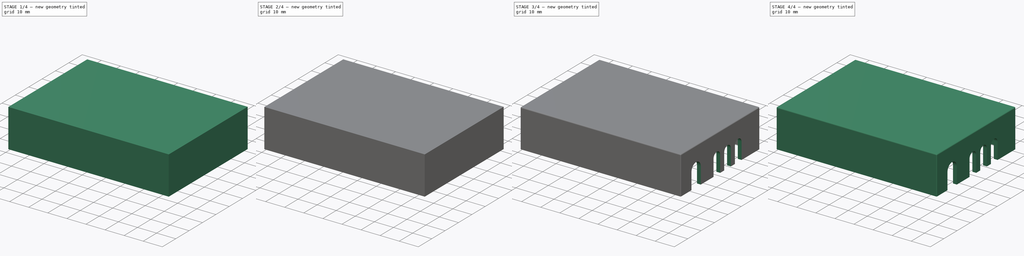
[diagram: build sequence overview — one tinted view per stage of 4, left to right]
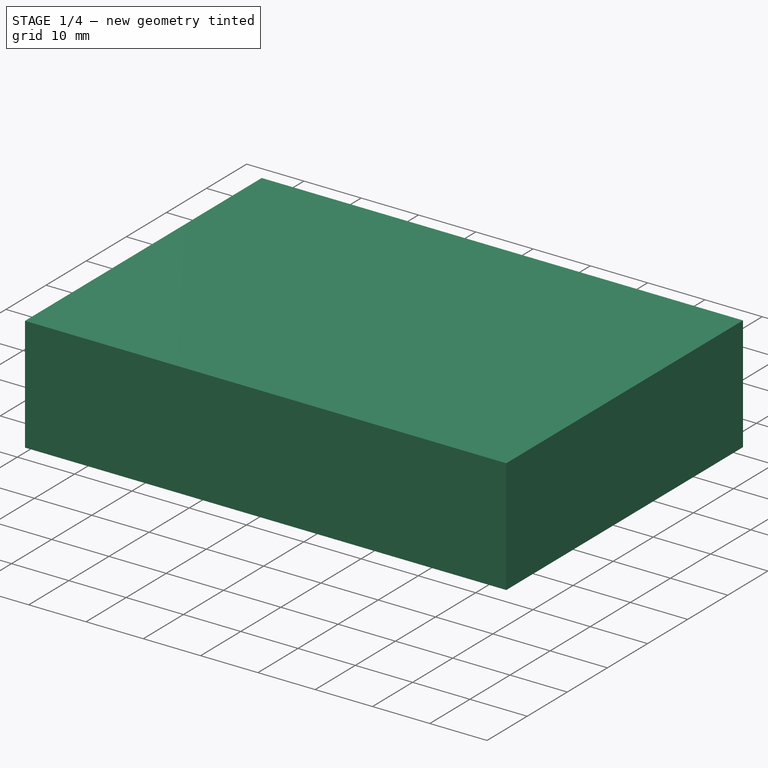
[diagram: stage 1 of 4 — iso view after this stage's code; geometry added in this stage tinted green]
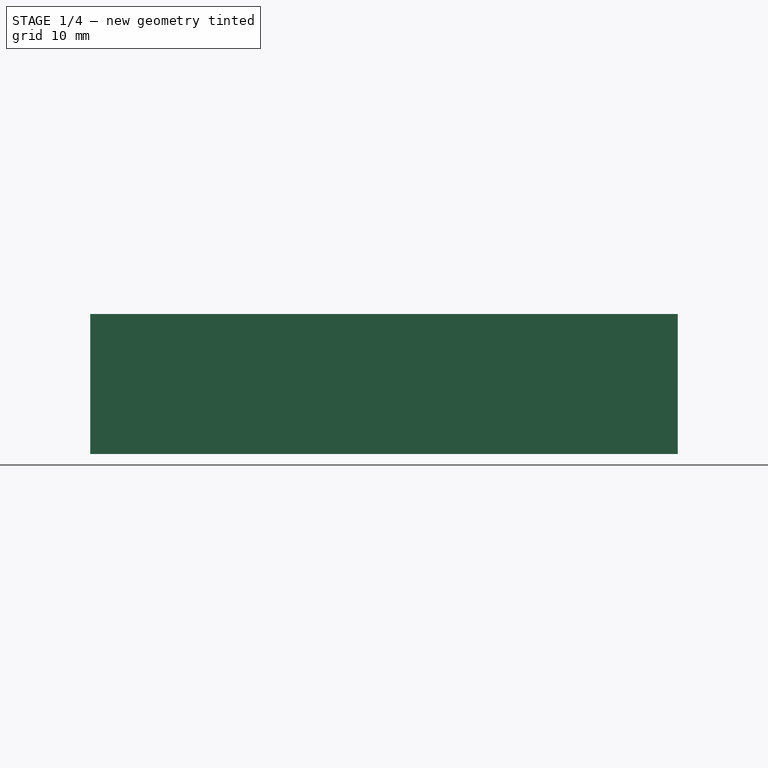
[diagram: stage 1 of 4 — front view after this stage's code; geometry added in this stage tinted green]
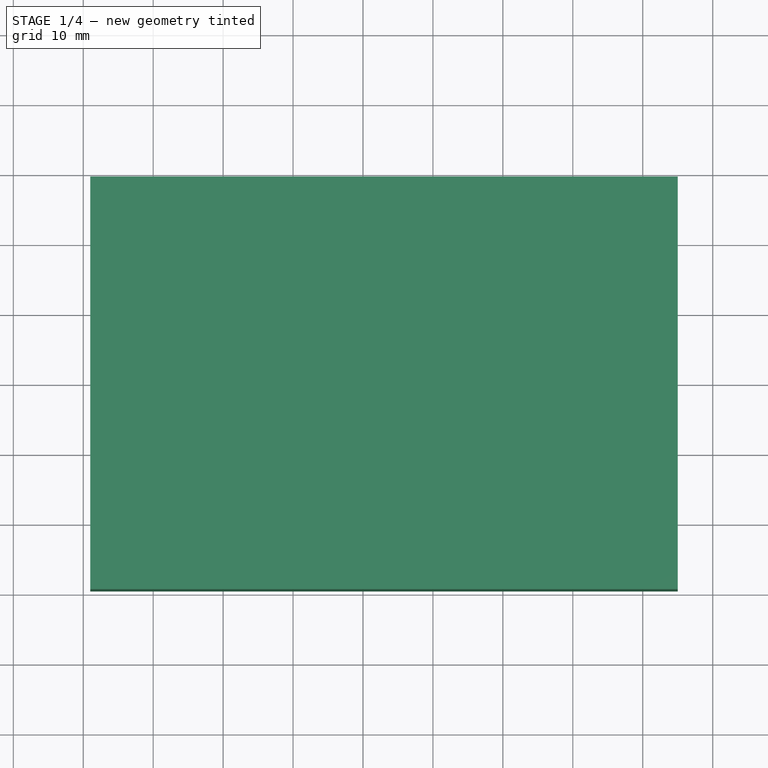
[diagram: stage 1 of 4 — top view after this stage's code; geometry added in this stage tinted green]
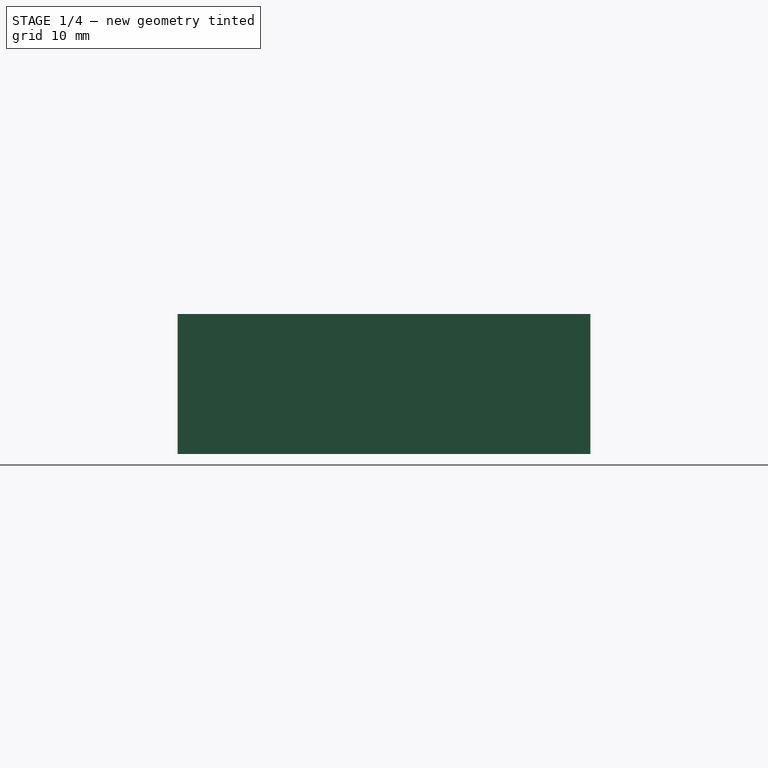
[diagram: stage 1 of 4 — right view after this stage's code; geometry added in this stage tinted green]
FCSTD DOCUMENT  (FreeCAD 0.19R24276 (Git))
Label: PCB_case_top
License: All rights reserved
LicenseURL: http://en.wikipedia.org/wiki/All_rights_reserved
objects: Sketcher::SketchObject×5, PartDesign::Fillet×4, PartDesign::Pad×3, PartDesign::Pocket×2, PartDesign::Body×1
note: 24 computed .brp shape members not serialized (recipe doc carries the construction recipe); baked Part::Feature solids carry a one-line shape summary decoded from their .brp

FEATURE [Sketcher::SketchObject] Sketch
  FullyConstrained = true
  MapMode = 5
  Support = -> [XY_Plane]
  sketch-geometry (4):
    g0: LineSegment StartX=-39 StartY=29.5 StartZ=0 EndX=45 EndY=29.5 EndZ=0
    g1: LineSegment StartX=45 StartY=29.5 StartZ=0 EndX=45 EndY=-29.5 EndZ=0
    g2: LineSegment StartX=45 StartY=-29.5 StartZ=0 EndX=-39 EndY=-29.5 EndZ=0
    g3: LineSegment StartX=-39 StartY=-29.5 StartZ=0 EndX=-39 EndY=29.5 EndZ=0
  constraints (11):
    c: Coincident(g0,g1)
    c: Coincident(g1,g2)
    c: Coincident(g2,g3)
    c: Coincident(g3,g0)
    c: Horizontal(g0)
    c: Horizontal(g2)
    c: Vertical(g1)
    c: DistanceX(g0,g0) = 84
    c: DistanceY(g3,g3) = 59
    c: Symmetric(g0,g2,g-1)
    c: DistanceX(g0,g-1) = 39
FEATURE [PartDesign::Pad] Pad
  Direction = (1,1,1)
  Length = 20
  Length2 = 100
  Profile = -> Sketch
  Type = 0
FEATURE [Sketcher::SketchObject] Sketch002
  FullyConstrained = true
  MapMode = 5
  Placement = pos=(0,0,0) rot=(1,0,0;3.14159rad)
  Support = -> [Pad]
  sketch-geometry (4):
    g0: LineSegment StartX=-37 StartY=27.5 StartZ=0 EndX=43 EndY=27.5 EndZ=0
    g1: LineSegment StartX=43 StartY=27.5 StartZ=0 EndX=43 EndY=-27.5 EndZ=0
    g2: LineSegment StartX=43 StartY=-27.5 StartZ=0 EndX=-37 EndY=-27.5 EndZ=0
    g3: LineSegment StartX=-37 StartY=-27.5 StartZ=0 EndX=-37 EndY=27.5 EndZ=0
  constraints (11):
    c: Coincident(g0,g1)
    c: Coincident(g1,g2)
    c: Coincident(g2,g3)
    c: Coincident(g3,g0)
    c: Horizontal(g0)
    c: Horizontal(g2)
    c: Vertical(g1)
    c: DistanceX(g0,g0) = 80
    c: DistanceY(g3,g3) = 55
    c: Symmetric(g0,g2,g-1)
    c: DistanceX(g0,g-1) = 37
FEATURE [PartDesign::Pocket] Pocket
  BaseFeature = -> Pad
  Length = 18
  Length2 = 100
  Profile = -> Sketch002
  Type = 0
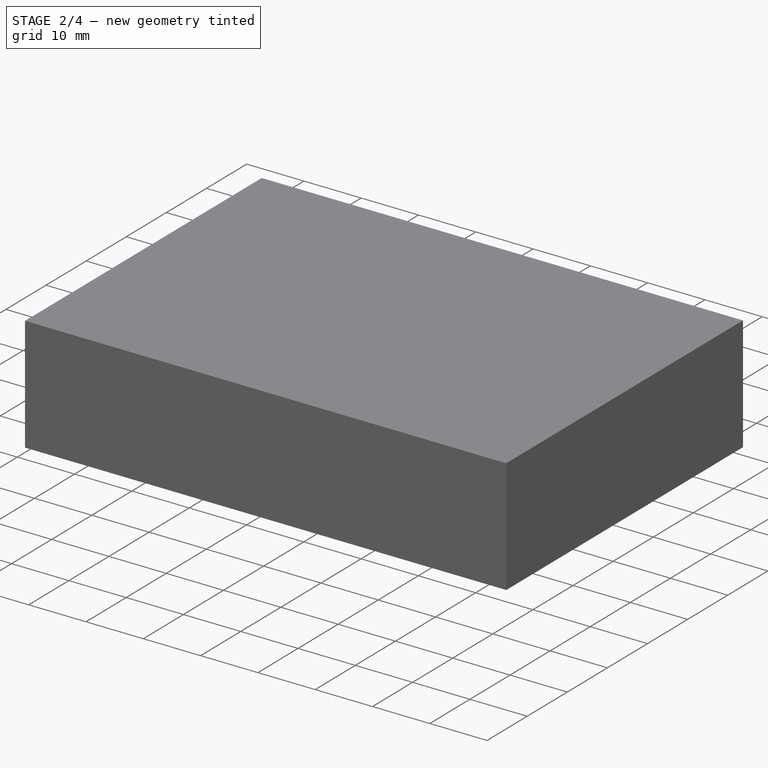
[diagram: stage 2 of 4 — iso view after this stage's code; geometry added in this stage tinted green]
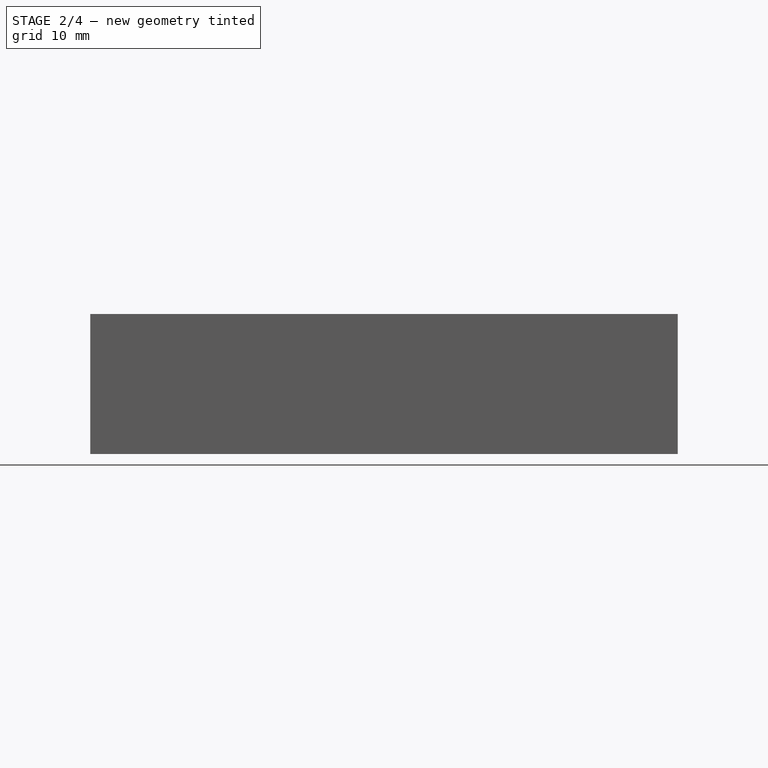
[diagram: stage 2 of 4 — front view after this stage's code; geometry added in this stage tinted green]
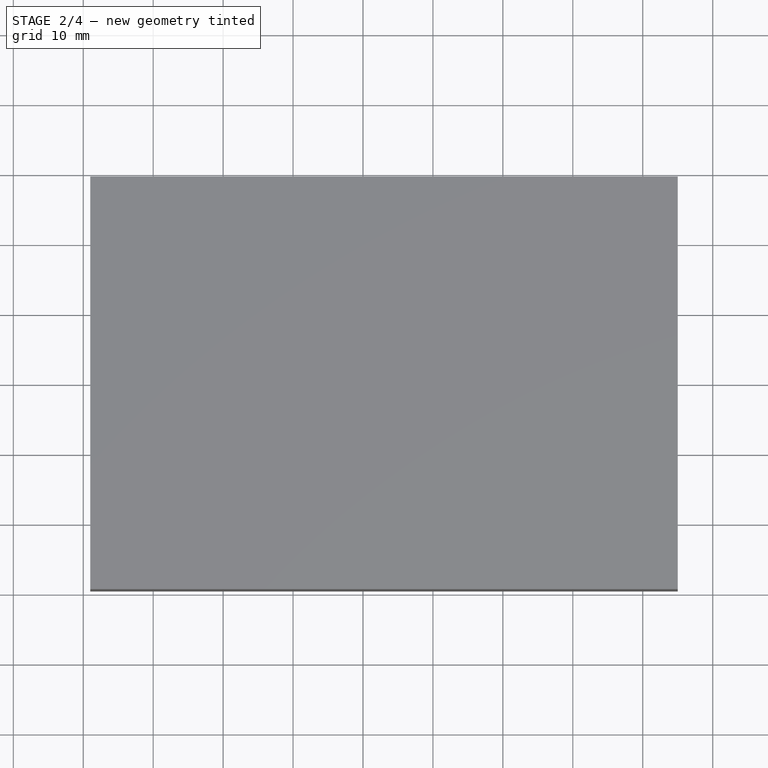
[diagram: stage 2 of 4 — top view after this stage's code; geometry added in this stage tinted green]
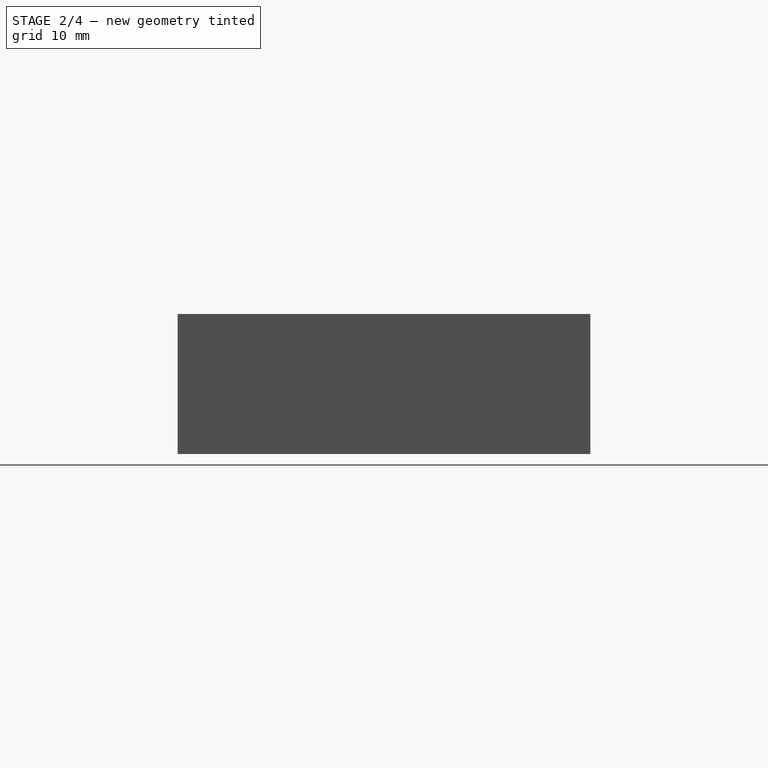
[diagram: stage 2 of 4 — right view after this stage's code; geometry added in this stage tinted green]
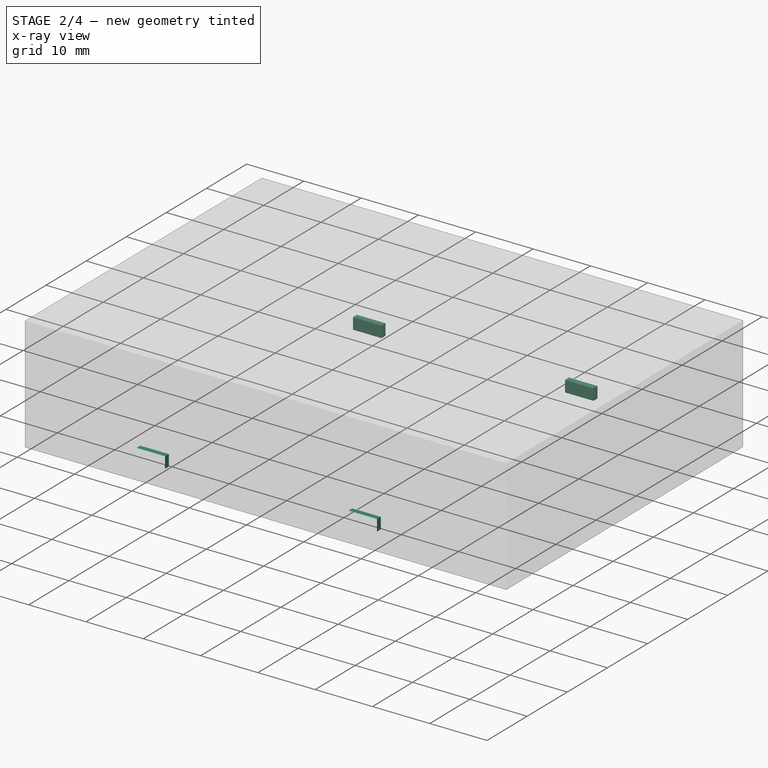
[diagram: stage 2 of 4 — x-ray composite at the iso view; earlier geometry ghosted, this stage's added geometry solid]
FEATURE [Sketcher::SketchObject] Sketch003
  FullyConstrained = true
  MapMode = 5
  Placement = pos=(0,27.5,0) rot=(1,0,0;1.5708rad)
  Support = -> [Pocket]
  sketch-geometry (8):
    g0: LineSegment StartX=-21 StartY=4 StartZ=0 EndX=-16 EndY=4 EndZ=0
    g1: LineSegment StartX=-16 StartY=4 StartZ=0 EndX=-16 EndY=2 EndZ=0
    g2: LineSegment StartX=-16 StartY=2 StartZ=0 EndX=-21 EndY=2 EndZ=0
    g3: LineSegment StartX=-21 StartY=2 StartZ=0 EndX=-21 EndY=4 EndZ=0
    g4: LineSegment StartX=16 StartY=4 StartZ=0 EndX=21 EndY=4 EndZ=0
    g5: LineSegment StartX=21 StartY=4 StartZ=0 EndX=21 EndY=2 EndZ=0
    g6: LineSegment StartX=21 StartY=2 StartZ=0 EndX=16 EndY=2 EndZ=0
    g7: LineSegment StartX=16 StartY=2 StartZ=0 EndX=16 EndY=4 EndZ=0
  constraints (24):
    c: Coincident(g0,g1)
    c: Coincident(g1,g2)
    c: Coincident(g2,g3)
    c: Coincident(g3,g0)
    c: Horizontal(g0)
    c: Horizontal(g2)
    c: Vertical(g1)
    c: Vertical(g3)
    c: Coincident(g4,g5)
    c: Coincident(g5,g6)
    c: Coincident(g6,g7)
    c: Coincident(g7,g4)
    c: Horizontal(g4)
    c: Horizontal(g6)
    c: Vertical(g5)
    c: Vertical(g7)
    c: DistanceX(g0,g0) = 5
    c: Equal(g0,g4)
    c: DistanceY(g1,g1) = 2
    c: Equal(g1,g7)
    c: DistanceX(g1,g-1) = 16
    c: DistanceX(g-1,g6) = 16
    c: DistanceY(g-1,g1) = 2
    c: DistanceY(g-1,g6) = 2
FEATURE [PartDesign::Pad] Pad001
  BaseFeature = -> Pocket
  Direction = (1,1,1)
  Length = 1
  Length2 = 100
  Profile = -> Sketch003
  Type = 0
FEATURE [Sketcher::SketchObject] Sketch004
  FullyConstrained = true
  MapMode = 5
  Placement = pos=(0,-27.5,0) rot=(0,0.707107,0.707107;3.14159rad)
  Support = -> [Pad001]
  sketch-geometry (8):
    g0: LineSegment StartX=-21 StartY=4 StartZ=0 EndX=-16 EndY=4 EndZ=0
    g1: LineSegment StartX=-16 StartY=4 StartZ=0 EndX=-16 EndY=2 EndZ=0
    g2: LineSegment StartX=-16 StartY=2 StartZ=0 EndX=-21 EndY=2 EndZ=0
    g3: LineSegment StartX=-21 StartY=2 StartZ=0 EndX=-21 EndY=4 EndZ=0
    g4: LineSegment StartX=16 StartY=4 StartZ=0 EndX=21 EndY=4 EndZ=0
    g5: LineSegment StartX=21 StartY=4 StartZ=0 EndX=21 EndY=2 EndZ=0
    g6: LineSegment StartX=21 StartY=2 StartZ=0 EndX=16 EndY=2 EndZ=0
    g7: LineSegment StartX=16 StartY=2 StartZ=0 EndX=16 EndY=4 EndZ=0
  constraints (24):
    c: Coincident(g0,g1)
    c: Coincident(g1,g2)
    c: Coincident(g2,g3)
    c: Coincident(g3,g0)
    c: Horizontal(g0)
    c: Horizontal(g2)
    c: Vertical(g1)
    c: Vertical(g3)
    c: Coincident(g4,g5)
    c: Coincident(g5,g6)
    c: Coincident(g6,g7)
    c: Coincident(g7,g4)
    c: Horizontal(g4)
    c: Horizontal(g6)
    c: Vertical(g5)
    c: Vertical(g7)
    c: DistanceX(g0,g0) = 5
    c: Equal(g0,g4)
    c: DistanceY(g1,g1) = 2
    c: Equal(g1,g7)
    c: DistanceX(g1,g-1) = 16
    c: DistanceX(g-1,g6) = 16
    c: DistanceY(g-1,g1) = 2
    c: DistanceY(g-1,g6) = 2
FEATURE [PartDesign::Pad] Pad002
  BaseFeature = -> Pad001
  Direction = (1,1,1)
  Length = 1
  Length2 = 100
  Profile = -> Sketch004
  Type = 0
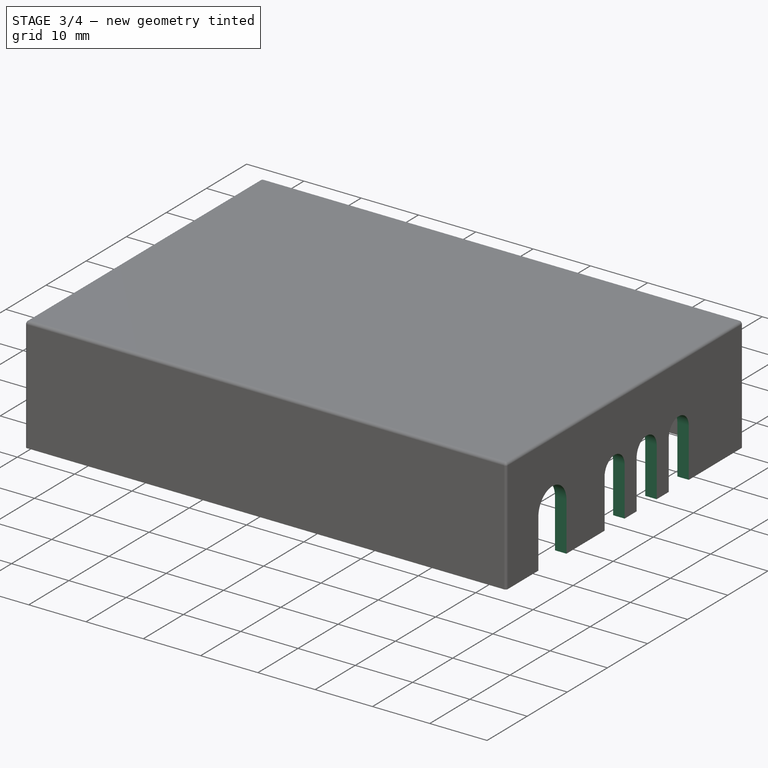
[diagram: stage 3 of 4 — iso view after this stage's code; geometry added in this stage tinted green]
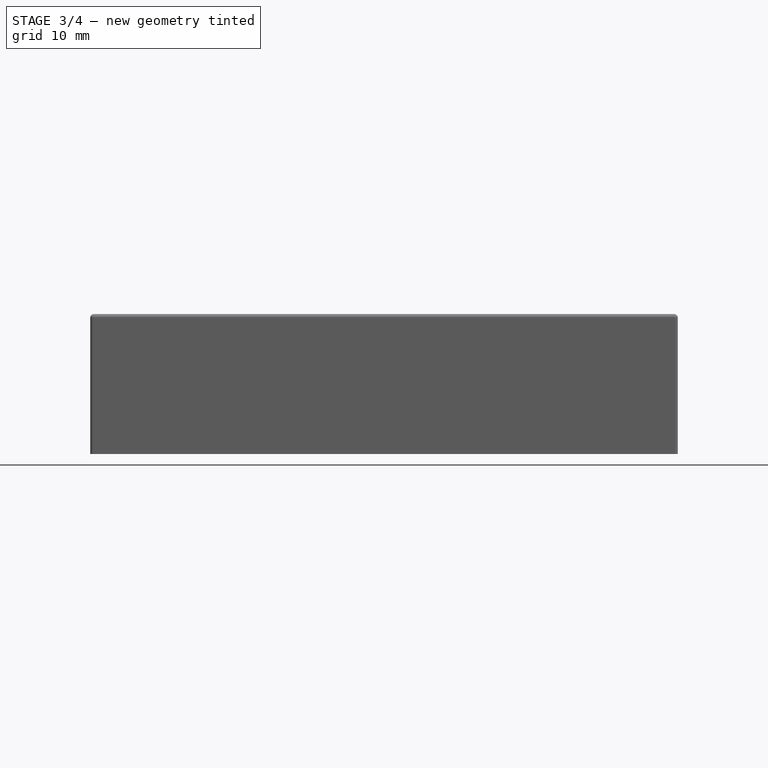
[diagram: stage 3 of 4 — front view after this stage's code; geometry added in this stage tinted green]
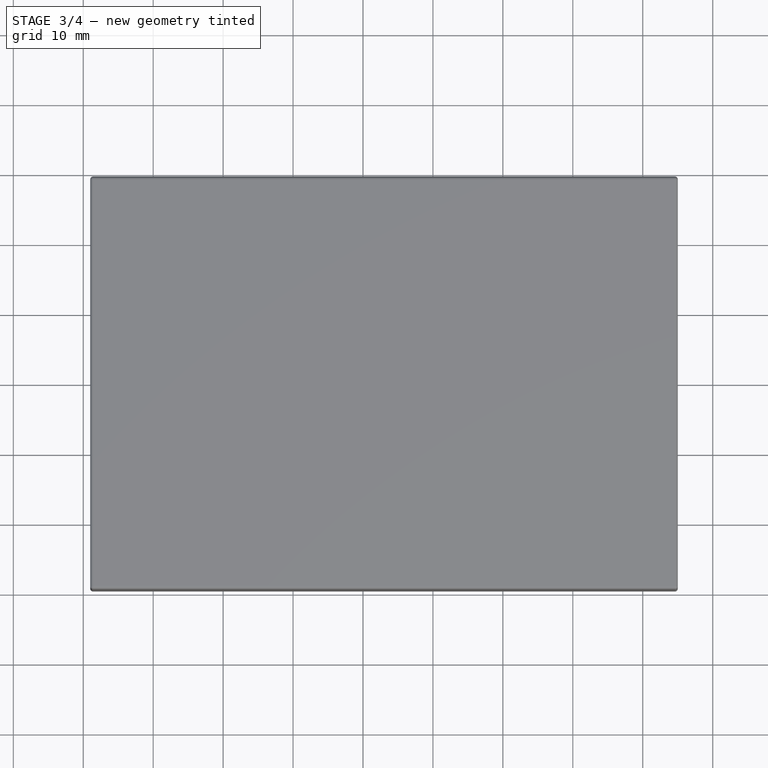
[diagram: stage 3 of 4 — top view after this stage's code; geometry added in this stage tinted green]
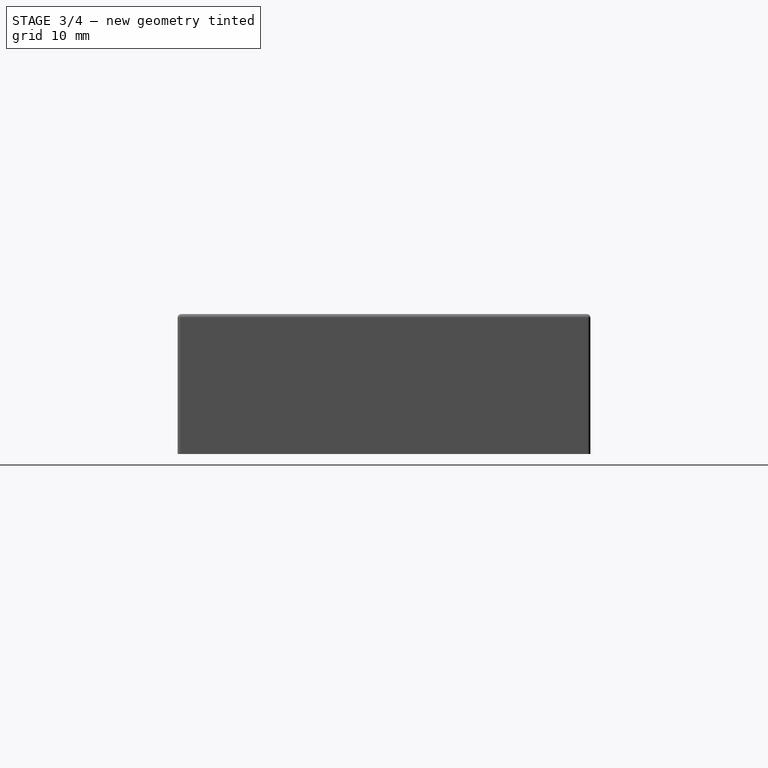
[diagram: stage 3 of 4 — right view after this stage's code; geometry added in this stage tinted green]
FEATURE [Sketcher::SketchObject] Sketch005
  FullyConstrained = true
  MapMode = 5
  Placement = pos=(45,0,0) rot=(0.57735,0.57735,0.57735;2.0944rad)
  Support = -> [Pad002]
  sketch-geometry (16):
    g0: ArcOfCircle CenterX=-18 CenterY=0 CenterZ=0 NormalX=0 NormalY=0 NormalZ=1 AngleXU=0 Radius=3.5 StartAngle=3.14159 EndAngle=6.28319
    g1: ArcOfCircle CenterX=-18 CenterY=8.5 CenterZ=0 NormalX=0 NormalY=0 NormalZ=1 AngleXU=0 Radius=3.5 StartAngle=2e-16 EndAngle=3.14159
    g2: LineSegment StartX=-14.5 StartY=-9e-16 StartZ=0 EndX=-14.5 EndY=8.5 EndZ=0
    g3: LineSegment StartX=-21.5 StartY=-6.55e-14 StartZ=0 EndX=-21.5 EndY=8.5 EndZ=0
    g4: ArcOfCircle CenterX=-2.5 CenterY=0 CenterZ=0 NormalX=0 NormalY=0 NormalZ=1 AngleXU=0 Radius=2.5 StartAngle=3.14159 EndAngle=6.28319
    g5: ArcOfCircle CenterX=-2.5 CenterY=8.5 CenterZ=0 NormalX=0 NormalY=0 NormalZ=1 AngleXU=0 Radius=2.5 StartAngle=3e-16 EndAngle=3.14159
    g6: LineSegment StartX=-5.778e-13 StartY=-6e-16 StartZ=0 EndX=-5.778e-13 EndY=8.5 EndZ=0
    g7: LineSegment StartX=-5 StartY=-2.772e-13 StartZ=0 EndX=-5 EndY=8.5 EndZ=0
    g8: ArcOfCircle CenterX=5.5 CenterY=0 CenterZ=0 NormalX=0 NormalY=0 NormalZ=1 AngleXU=0 Radius=2.5 StartAngle=3.14159 EndAngle=6.28319
    g9: ArcOfCircle CenterX=5.5 CenterY=8.5 CenterZ=0 NormalX=0 NormalY=0 NormalZ=1 AngleXU=0 Radius=2.5 StartAngle=3e-16 EndAngle=3.14159
    g10: LineSegment StartX=8 StartY=0 StartZ=0 EndX=8 EndY=8.5 EndZ=0
    g11: LineSegment StartX=3 StartY=1.388e-13 StartZ=0 EndX=3 EndY=8.5 EndZ=0
    g12: ArcOfCircle CenterX=13.5 CenterY=0 CenterZ=0 NormalX=0 NormalY=0 NormalZ=1 AngleXU=0 Radius=2.5 StartAngle=3.14159 EndAngle=6.28319
    g13: ArcOfCircle CenterX=13.5 CenterY=8.5 CenterZ=0 NormalX=0 NormalY=0 NormalZ=1 AngleXU=0 Radius=2.5 StartAngle=0 EndAngle=3.14159
    g14: LineSegment StartX=16 StartY=0 StartZ=0 EndX=16 EndY=8.5 EndZ=0
    g15: LineSegment StartX=11 StartY=-3e-16 StartZ=0 EndX=11 EndY=8.5 EndZ=0
  constraints (40):
    c: Tangent(g0,g3) = 1.5708
    c: Tangent(g0,g2) = -1.5708
    c: Tangent(g2,g1) = -1.5708
    c: Tangent(g3,g1) = 1.5708
    c: Vertical(g2)
    c: Equal(g0,g1)
    c: Tangent(g4,g7) = 1.5708
    c: Tangent(g4,g6) = -1.5708
    c: Tangent(g6,g5) = -1.5708
    c: Tangent(g7,g5) = 1.5708
    c: Vertical(g6)
    c: Equal(g4,g5)
    c: Tangent(g8,g11) = 1.5708
    c: Tangent(g8,g10) = -1.5708
    c: Tangent(g10,g9) = -1.5708
    c: Tangent(g11,g9) = 1.5708
    c: Vertical(g10)
    c: Equal(g8,g9)
    c: Tangent(g12,g15) = 1.5708
    c: Tangent(g12,g14) = -1.5708
    c: Tangent(g14,g13) = -1.5708
    c: Tangent(g15,g13) = 1.5708
    c: Vertical(g14)
    c: Equal(g12,g13)
    c: DistanceX(g0,g0) = 7
    c: DistanceX(g4,g4) = 5
    c: DistanceX(g8,g8) = 5
    c: DistanceX(g12,g12) = 5
    c: DistanceX(g8,g12) = 3
    c: DistanceX(g4,g8) = 3
    c: DistanceY(g14,g14) = 8.5
    c: Equal(g14,g10)
    c: Equal(g10,g6)
    c: Equal(g6,g2)
    c: PointOnObject(g4,g-2)
    c: PointOnObject(g4,g-1)
    c: PointOnObject(g8,g-1)
    c: PointOnObject(g12,g-1)
    c: DistanceX(g0,g4) = 14.5
    c: PointOnObject(g0,g-1)
FEATURE [PartDesign::Pocket] Pocket001
  BaseFeature = -> Pad002
  Length = 2
  Length2 = 100
  Profile = -> Sketch005
  Type = 0
FEATURE [PartDesign::Fillet] Fillet
  Base = -> Pocket001 [Edge4,Edge7,Edge35,Edge26]
  BaseFeature = -> Pocket001
  Radius = 0.5
  SupportTransform = false
FEATURE [PartDesign::Fillet] Fillet001
  Base = -> Fillet [Edge4,Edge21,Edge1,Edge5]
  BaseFeature = -> Fillet
  Radius = 0.4
  SupportTransform = false
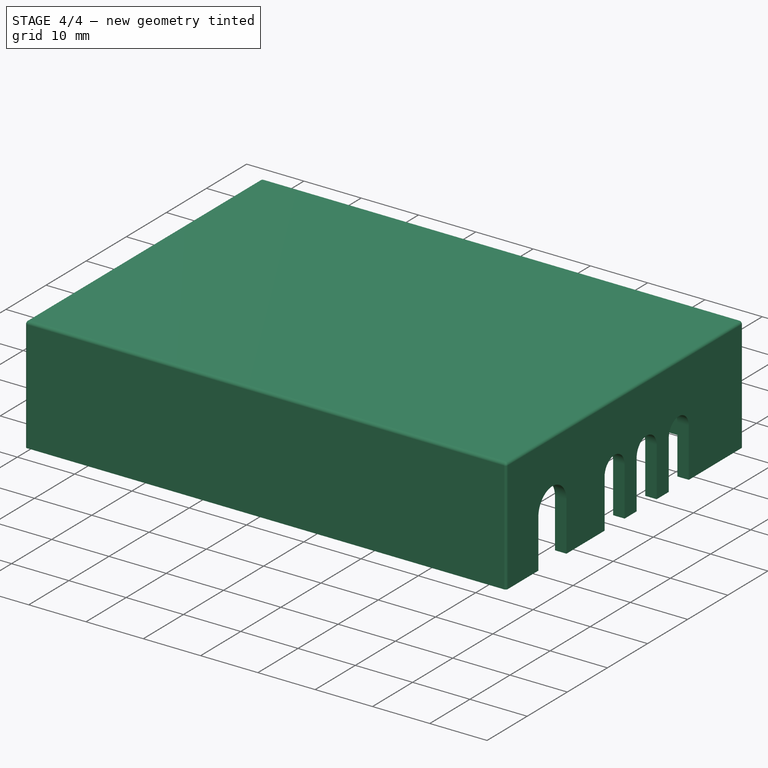
[diagram: stage 4 of 4 — iso view after this stage's code; geometry added in this stage tinted green]
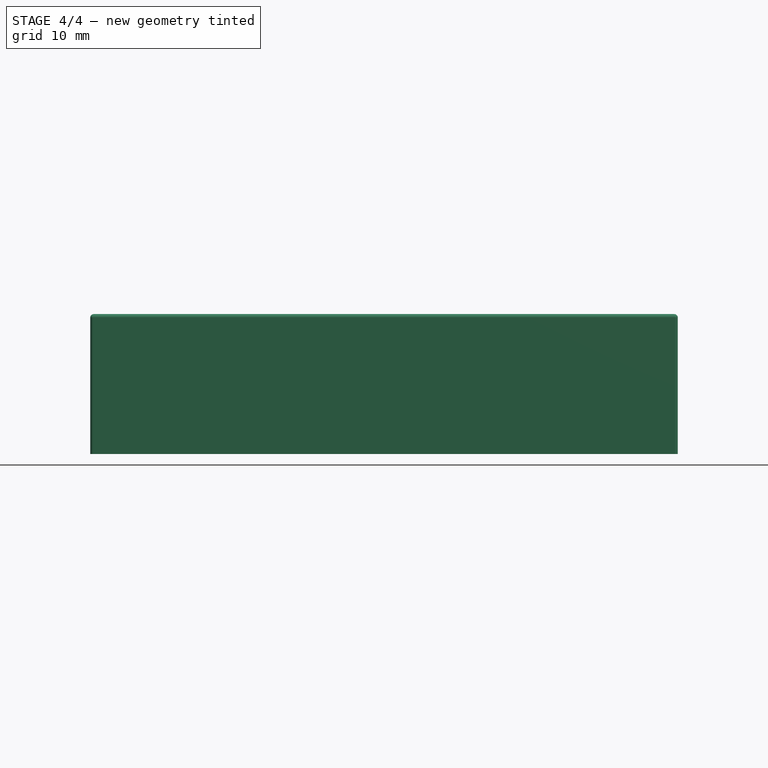
[diagram: stage 4 of 4 — front view after this stage's code; geometry added in this stage tinted green]
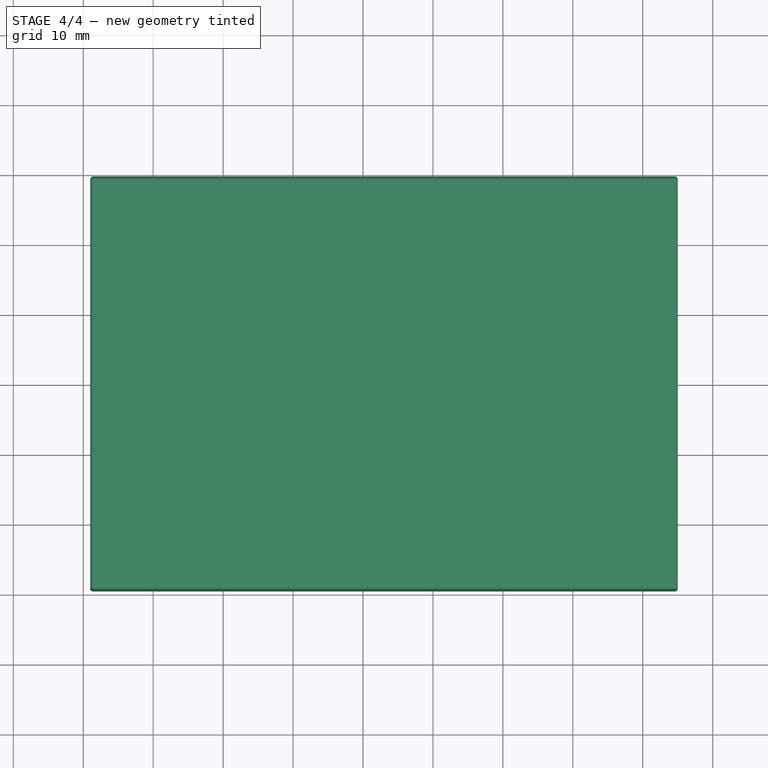
[diagram: stage 4 of 4 — top view after this stage's code; geometry added in this stage tinted green]
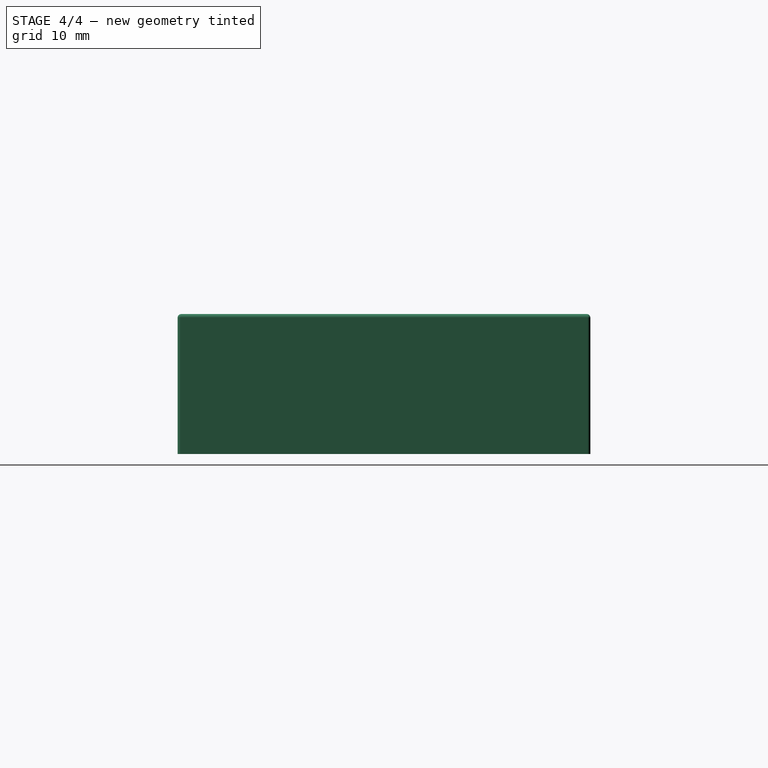
[diagram: stage 4 of 4 — right view after this stage's code; geometry added in this stage tinted green]
FEATURE [PartDesign::Fillet] Fillet002
  Base = -> Fillet001 [Edge121,Edge123,Edge124,Edge119,Edge131,Edge129,Edge127,Edge132]
  BaseFeature = -> Fillet001
  Radius = 0.5
  SupportTransform = false
FEATURE [PartDesign::Fillet] Fillet003
  Base = -> Fillet002 [Edge143,Edge148,Edge145,Edge147,Edge137,Edge135,Edge140,Edge139]
  BaseFeature = -> Fillet002
  Radius = 0.5
  SupportTransform = false
FEATURE [PartDesign::Body] Body
  Group = -> [Sketch,Pad,Sketch002,Pocket,Sketch003,Pad001,Sketch004,Pad002,Sketch005,Pocket001,Fillet,Fillet001,Fillet002,Fillet003]
  Origin = -> Origin
  Tip = -> Fillet003
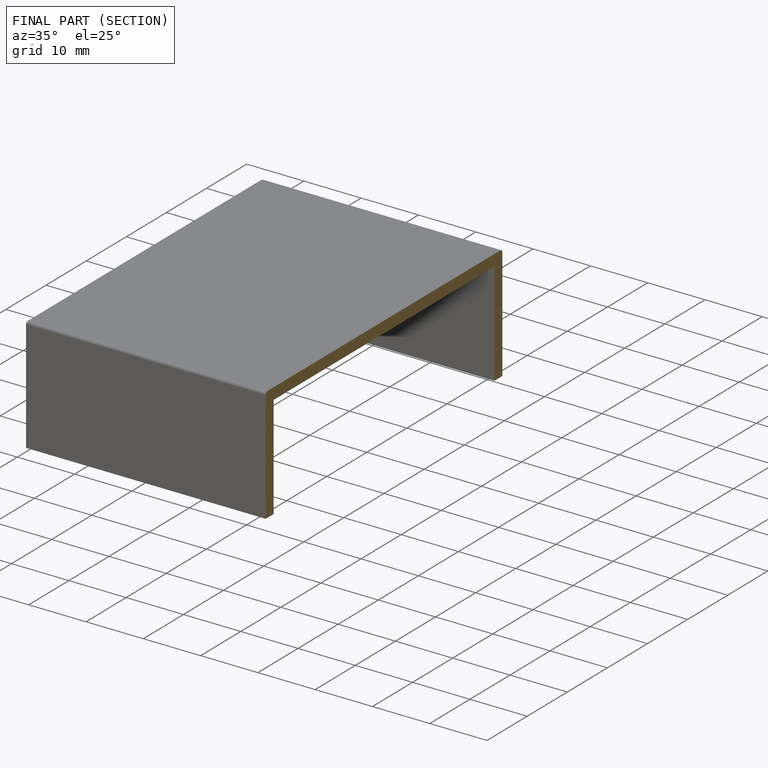
[diagram: finished part — half-section view (interior)]
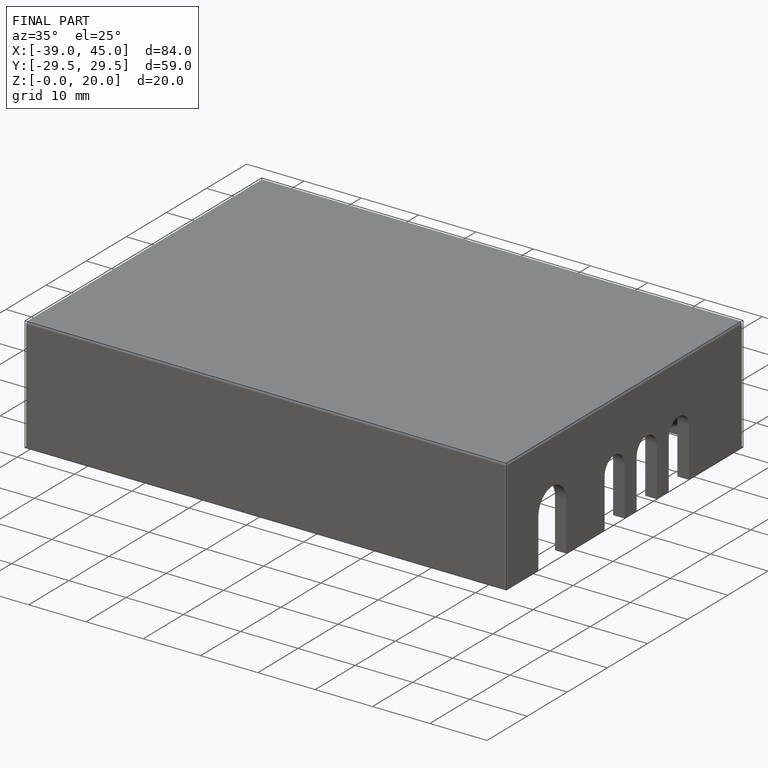
[diagram: finished part — iso view with bounding-box wireframe]
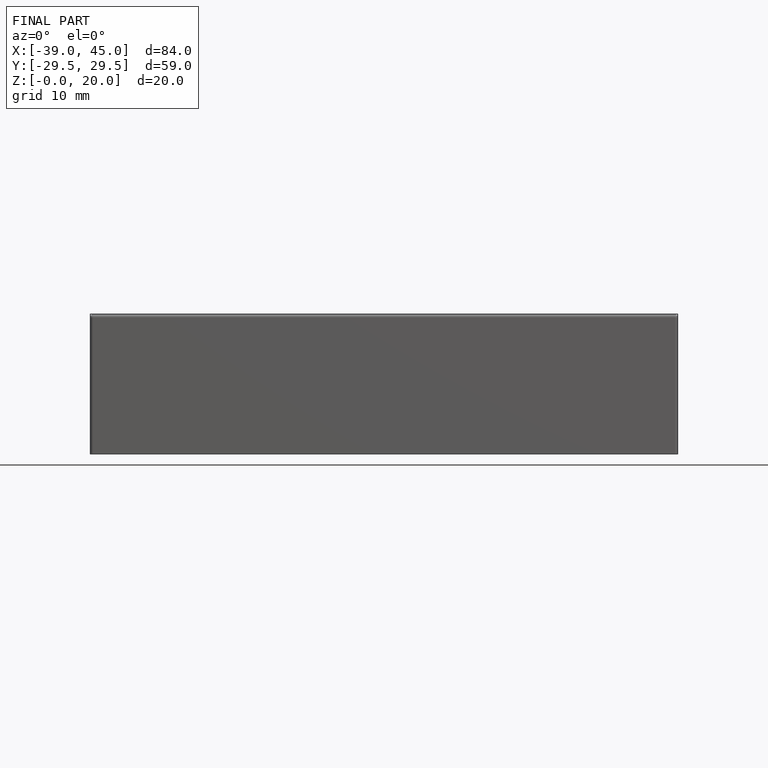
[diagram: finished part — front view with bounding-box wireframe]
